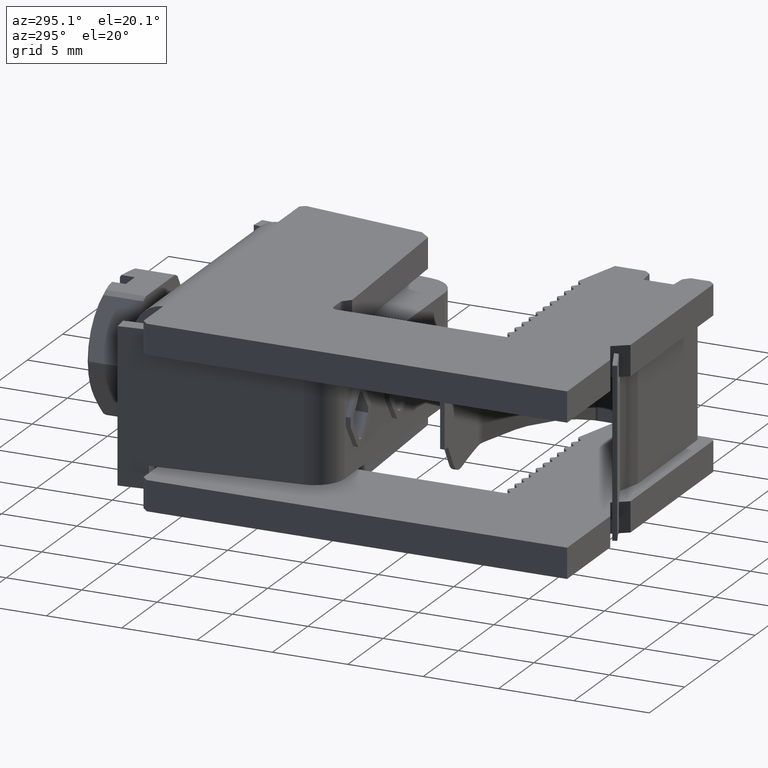
[diagram: clean part render]
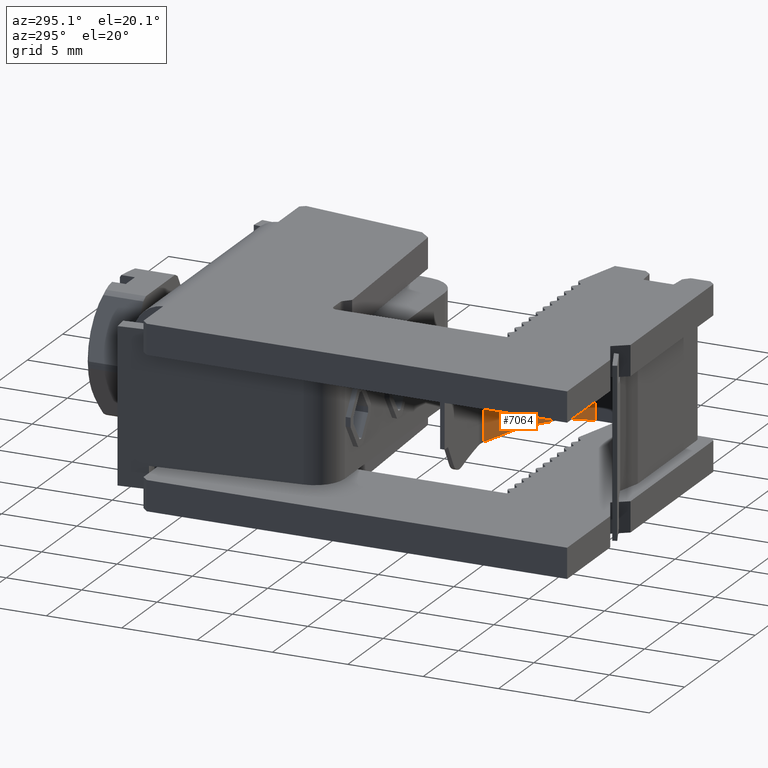
[diagram: same view with one face highlighted and labeled with its STEP entity id]
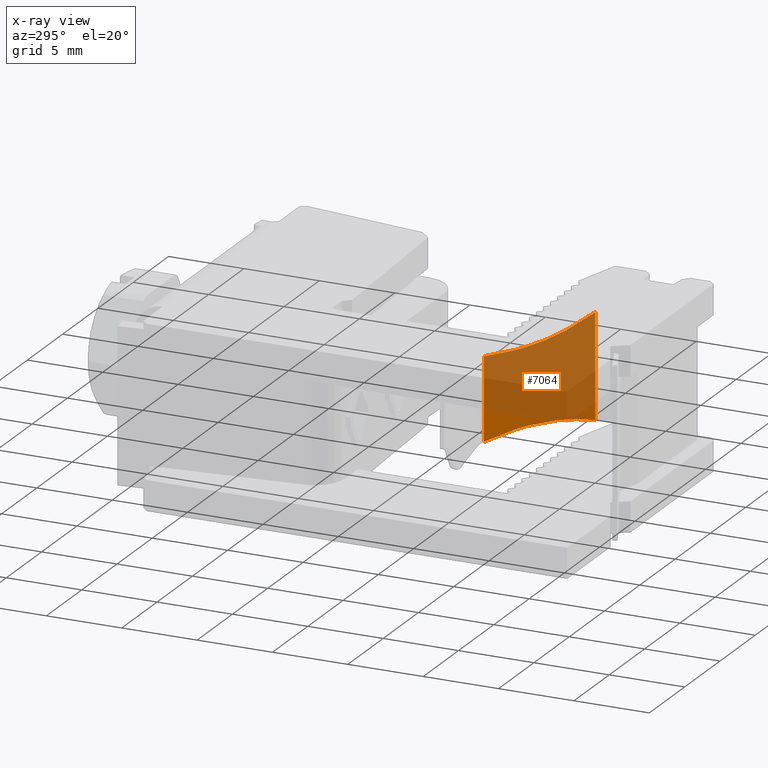
[diagram: x-ray of the same camera — body ghosted, the highlighted face saturated]
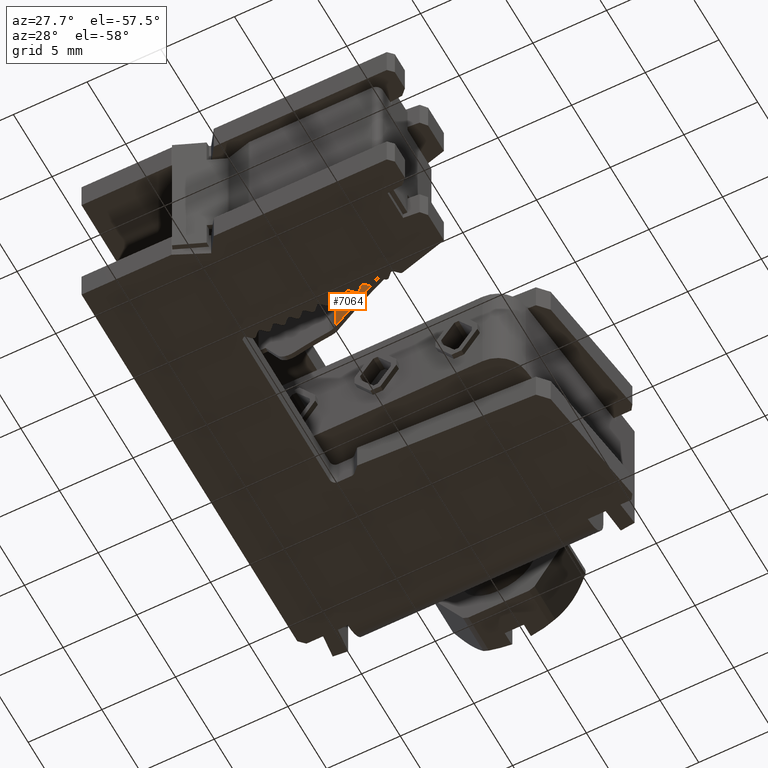
[diagram: same view with one face highlighted and labeled with its STEP entity id]
A machine part, auxiliary view. The second image highlights one B-rep face of the part: STEP entity #7064.
The next image is the same camera in x-ray: the body ghosted, the highlighted face saturated — about 87% of this face is hidden behind the body in this view.
A second angle (auxiliary view) of the same face is appended — the face is thin or edge-on in the first view.
In plain terms, the highlighted planar face has unit normal (0.4115, 0.9114, -0).
Its self-contained STEP definition (entity closure, byte-faithful):
#1116 = CARTESIAN_POINT ( 'NONE',  ( 12.11256735588221100, 8.124311517754598800, 8.539659673591931000 ) ) ;
#1117 = CARTESIAN_POINT ( 'NONE',  ( 11.89299120213785200, 8.223444110333225900, 8.540320259757558900 ) ) ;
#1119 = CARTESIAN_POINT ( 'NONE',  ( 11.78320308852925000, 8.273010423208024400, 8.540635388722044800 ) ) ;
#1120 = CARTESIAN_POINT ( 'NONE',  ( 11.69535873946420400, 8.312669730094048900, 8.540887531671286200 ) ) ;
#1130 = CARTESIAN_POINT ( 'NONE',  ( 12.00277930403806100, 8.173877802744447900, 8.539999721488879200 ) ) ;
#1165 = CARTESIAN_POINT ( 'NONE',  ( 11.51967002677377700, 8.391988350439687500, 8.541385686075393800 ) ) ;
#1168 = CARTESIAN_POINT ( 'NONE',  ( 11.43182567217010300, 8.431647659826250400, 8.541635488527552100 ) ) ;
#1169 = CARTESIAN_POINT ( 'NONE',  ( 11.60751438139347200, 8.352329041045893000, 8.541135883623187700 ) ) ;
#1207 = CARTESIAN_POINT ( 'NONE',  ( 11.34398132041731900, 8.471306967925714900, 8.541886576513606500 ) ) ;
#1208 = CARTESIAN_POINT ( 'NONE',  ( 11.25613698599179500, 8.510966268202395200, 8.542144779767928900 ) ) ;
#1233 = LINE ( 'NONE', #1237, #8486 ) ;
#1234 = DIRECTION ( 'NONE',  ( 0.0000000000000000000, 0.0000000000000000000, 1.000000000000000000 ) ) ;
#1237 = CARTESIAN_POINT ( 'NONE',  ( 17.00677823012316700, 5.914709954394947300, 11.59999999999999300 ) ) ;
#1262 = CARTESIAN_POINT ( 'NONE',  ( 15.43311713295116400, 6.625174646223086100, 8.885863804035055900 ) ) ;
#1270 = CARTESIAN_POINT ( 'NONE',  ( 12.11256735588221100, 8.124311517754598800, 8.539659673591931000 ) ) ;
#1299 = CARTESIAN_POINT ( 'NONE',  ( 17.00677823012316400, 5.914709954394948200, 9.459291654214739600 ) ) ;
#1302 = CARTESIAN_POINT ( 'NONE',  ( 13.78704246343948700, 7.368332073767276400, 8.576563091933881100 ) ) ;
#1349 = CARTESIAN_POINT ( 'NONE',  ( 15.43326413276127300, 6.625108279852983500, 3.114655817632972800 ) ) ;
#1370 = CARTESIAN_POINT ( 'NONE',  ( 13.78719388634401500, 7.368263710491731900, 3.423914507451206300 ) ) ;
#1371 = CARTESIAN_POINT ( 'NONE',  ( 17.00677823012316700, 5.914709954394947300, 2.540860053644022900 ) ) ;
#1380 = CARTESIAN_POINT ( 'NONE',  ( 12.11272044118686800, 8.124242403951127400, 3.460340800589919200 ) ) ;
#1696 = VERTEX_POINT ( 'NONE', #5385 ) ;
#1720 = VERTEX_POINT ( 'NONE', #5376 ) ;
#1727 = VERTEX_POINT ( 'NONE', #5379 ) ;
#1775 = VERTEX_POINT ( 'NONE', #4330 ) ;
#1788 = VERTEX_POINT ( 'NONE', #4341 ) ;
#1791 = VERTEX_POINT ( 'NONE', #4343 ) ;
#1801 = VERTEX_POINT ( 'NONE', #4374 ) ;
#1802 = VERTEX_POINT ( 'NONE', #4379 ) ;
#2027 = ORIENTED_EDGE ( 'NONE', *, *, #7512, .F. ) ;
#2042 = ORIENTED_EDGE ( 'NONE', *, *, #7178, .T. ) ;
#2055 = ORIENTED_EDGE ( 'NONE', *, *, #7629, .F. ) ;
#4330 = CARTESIAN_POINT ( 'NONE',  ( 17.00677823012316700, 5.914709954394947300, 2.540860053644022900 ) ) ;
#4341 = CARTESIAN_POINT ( 'NONE',  ( 12.11256735588221100, 8.124311517754598800, 8.539659673591931000 ) ) ;
#4343 = CARTESIAN_POINT ( 'NONE',  ( 12.11272044118686800, 8.124242403951127400, 3.460340800589919200 ) ) ;
#4374 = CARTESIAN_POINT ( 'NONE',  ( 8.980238782643445100, 9.538471693976646300, 8.738091799417611900 ) ) ;
#4379 = CARTESIAN_POINT ( 'NONE',  ( 11.25613698599178900, 8.510966268202397000, 3.457855220246168800 ) ) ;
#5376 = CARTESIAN_POINT ( 'NONE',  ( 17.00677823012316400, 5.914709954394948200, 9.459291654214739600 ) ) ;
#5379 = CARTESIAN_POINT ( 'NONE',  ( 11.25613698599179500, 8.510966268202395200, 8.542144779767928900 ) ) ;
#5385 = CARTESIAN_POINT ( 'NONE',  ( 8.980238782643441600, 9.538471693976649800, 3.261908200675662800 ) ) ;
#5768 = EDGE_LOOP ( 'NONE', ( #8887, #8884, #8899, #2042, #8902, #8917, #2055, #2027 ) ) ;
#7064 = ADVANCED_FACE ( 'NONE', ( #10394 ), #10324, .F. ) ;
#7178 = EDGE_CURVE ( 'NONE', #1788, #1727, #10854, .T. ) ;
#7192 = EDGE_CURVE ( 'NONE', #1775, #1720, #1233, .T. ) ;
#7213 = EDGE_CURVE ( 'NONE', #1720, #1788, #10836, .T. ) ;
#7239 = EDGE_CURVE ( 'NONE', #1791, #1775, #10835, .T. ) ;
#7512 = EDGE_CURVE ( 'NONE', #1791, #1802, #10866, .T. ) ;
#7531 = EDGE_CURVE ( 'NONE', #1696, #1801, #9218, .T. ) ;
#7559 = EDGE_CURVE ( 'NONE', #1801, #1727, #10840, .T. ) ;
#7629 = EDGE_CURVE ( 'NONE', #1802, #1696, #10827, .T. ) ;
#7720 = VECTOR ( 'NONE', #9214, 1000.000000000000000 ) ;
#8362 = AXIS2_PLACEMENT_3D ( 'NONE', #10352, #10362, #10348 ) ;
#8486 = VECTOR ( 'NONE', #1234, 1000.000000000000000 ) ;
#8884 = ORIENTED_EDGE ( 'NONE', *, *, #7192, .T. ) ;
#8887 = ORIENTED_EDGE ( 'NONE', *, *, #7239, .T. ) ;
#8899 = ORIENTED_EDGE ( 'NONE', *, *, #7213, .T. ) ;
#8902 = ORIENTED_EDGE ( 'NONE', *, *, #7559, .F. ) ;
#8917 = ORIENTED_EDGE ( 'NONE', *, *, #7531, .F. ) ;
#9126 = CARTESIAN_POINT ( 'NONE',  ( 12.11272044118686800, 8.124242403951127400, 3.460340800589919200 ) ) ;
#9128 = CARTESIAN_POINT ( 'NONE',  ( 12.00292176484875600, 8.173813485607706000, 3.460000700770046800 ) ) ;
#9129 = CARTESIAN_POINT ( 'NONE',  ( 11.89312303841950100, 8.223384589879055200, 3.459680123164353500 ) ) ;
#9131 = CARTESIAN_POINT ( 'NONE',  ( 11.78332430027274200, 8.272955699440538900, 3.459364959215355500 ) ) ;
#9132 = CARTESIAN_POINT ( 'NONE',  ( 11.69545974925897300, 8.312624126950627400, 3.459112754687855100 ) ) ;
#9133 = CARTESIAN_POINT ( 'NONE',  ( 11.60759518922901600, 8.352292558531278400, 3.458864345534073100 ) ) ;
#9134 = CARTESIAN_POINT ( 'NONE',  ( 11.51973063264922100, 8.391960988554274100, 3.458614486284481900 ) ) ;
#9135 = CARTESIAN_POINT ( 'NONE',  ( 11.43186607608553700, 8.431629418569995600, 3.458364627034936900 ) ) ;
#9166 = CARTESIAN_POINT ( 'NONE',  ( 11.34400152237114800, 8.471297847299343400, 3.458113482881178100 ) ) ;
#9205 = CARTESIAN_POINT ( 'NONE',  ( 11.25613698599178900, 8.510966268202397000, 3.457855220246168800 ) ) ;
#9214 = DIRECTION ( 'NONE',  ( 0.0000000000000000000, 0.0000000000000000000, 1.000000000000000000 ) ) ;
#9218 = LINE ( 'NONE', #9229, #7720 ) ;
#9229 = CARTESIAN_POINT ( 'NONE',  ( 8.980238782643443300, 9.538471693976648100, 11.59999999999999300 ) ) ;
#9320 = CARTESIAN_POINT ( 'NONE',  ( 10.49398564224213500, 8.855056632091159200, 8.561071975859073600 ) ) ;
#9333 = CARTESIAN_POINT ( 'NONE',  ( 8.980238782643445100, 9.538471693976646300, 8.738091799417611900 ) ) ;
#9337 = CARTESIAN_POINT ( 'NONE',  ( 11.25613698599179500, 8.510966268202395200, 8.542144779767928900 ) ) ;
#9349 = CARTESIAN_POINT ( 'NONE',  ( 9.734409343519457600, 9.197984433993209300, 8.626468886719269600 ) ) ;
#9537 = CARTESIAN_POINT ( 'NONE',  ( 10.49398564224374800, 8.855056632090430900, 3.438928024181271000 ) ) ;
#9539 = CARTESIAN_POINT ( 'NONE',  ( 9.734409343521077700, 9.197984433992479200, 3.373531113347510800 ) ) ;
#9540 = CARTESIAN_POINT ( 'NONE',  ( 8.980238782643441600, 9.538471693976649800, 3.261908200675662800 ) ) ;
#9542 = CARTESIAN_POINT ( 'NONE',  ( 11.25613698599178900, 8.510966268202397000, 3.457855220246168800 ) ) ;
#10324 = PLANE ( 'NONE',  #8362 ) ;
#10348 = DIRECTION ( 'NONE',  ( -0.9114185984578721000, 0.4114804228454714300, 0.0000000000000000000 ) ) ;
#10352 = CARTESIAN_POINT ( 'NONE',  ( 17.00677823012316700, 5.914709954394948200, 11.59999999999999300 ) ) ;
#10362 = DIRECTION ( 'NONE',  ( 0.4114804228454714800, 0.9114185984578722100, -0.0000000000000000000 ) ) ;
#10394 = FACE_OUTER_BOUND ( 'NONE', #5768, .T. ) ;
#10827 =( BOUNDED_CURVE ( )  B_SPLINE_CURVE ( 3, ( #9542, #9537, #9539, #9540 ),
 .UNSPECIFIED., .F., .T. ) 
 B_SPLINE_CURVE_WITH_KNOTS ( ( 4, 4 ),
 ( 4.737217784681565300, 4.859329722815591200 ),
 .UNSPECIFIED. ) 
 CURVE ( )  GEOMETRIC_REPRESENTATION_ITEM ( )  RATIONAL_B_SPLINE_CURVE ( ( 1.000000000000000000, 0.9987577755193163300, 0.9987577755193163300, 1.000000000000000000 ) ) 
 REPRESENTATION_ITEM ( '' )  );
#10835 =( BOUNDED_CURVE ( )  B_SPLINE_CURVE ( 3, ( #1380, #1370, #1349, #1371 ),
 .UNSPECIFIED., .F., .F. ) 
 B_SPLINE_CURVE_WITH_KNOTS ( ( 4, 4 ),
 ( 1.592546775483581100, 1.920470062257581000 ),
 .UNSPECIFIED. ) 
 CURVE ( )  GEOMETRIC_REPRESENTATION_ITEM ( )  RATIONAL_B_SPLINE_CURVE ( ( 1.000000000000000000, 0.9910589173595756300, 0.9910589173595756300, 1.000000000000000000 ) ) 
 REPRESENTATION_ITEM ( '' )  );
#10836 =( BOUNDED_CURVE ( )  B_SPLINE_CURVE ( 3, ( #1299, #1262, #1302, #1270 ),
 .UNSPECIFIED., .F., .F. ) 
 B_SPLINE_CURVE_WITH_KNOTS ( ( 4, 4 ),
 ( 4.362951685616860000, 4.690353749674671700 ),
 .UNSPECIFIED. ) 
 CURVE ( )  GEOMETRIC_REPRESENTATION_ITEM ( )  RATIONAL_B_SPLINE_CURVE ( ( 1.000000000000000000, 0.9910872544019856400, 0.9910872544019856400, 1.000000000000000000 ) ) 
 REPRESENTATION_ITEM ( '' )  );
#10840 =( BOUNDED_CURVE ( )  B_SPLINE_CURVE ( 3, ( #9333, #9349, #9320, #9337 ),
 .UNSPECIFIED., .F., .T. ) 
 B_SPLINE_CURVE_WITH_KNOTS ( ( 4, 4 ),
 ( 1.423855584329301500, 1.545967522463629100 ),
 .UNSPECIFIED. ) 
 CURVE ( )  GEOMETRIC_REPRESENTATION_ITEM ( )  RATIONAL_B_SPLINE_CURVE ( ( 1.000000000000000000, 0.9987577755193101100, 0.9987577755193101100, 1.000000000000000000 ) ) 
 REPRESENTATION_ITEM ( '' )  );
#10854 = B_SPLINE_CURVE_WITH_KNOTS ( 'NONE', 3,
 ( #1116, #1130, #1117, #1119, #1120, #1169, #1165, #1168, #1207, #1208 ),
 .UNSPECIFIED., .F., .F.,
 ( 4, 3, 3, 4 ),
 ( 3.878959614448864200E-018, 0.0003613767246406669700, 0.0006505237187481760700, 0.0009396707129638302100 ),
 .UNSPECIFIED. ) ;
#10866 = B_SPLINE_CURVE_WITH_KNOTS ( 'NONE', 3,
 ( #9126, #9128, #9129, #9131, #9132, #9133, #9134, #9135, #9166, #9205 ),
 .UNSPECIFIED., .F., .F.,
 ( 4, 3, 3, 4 ),
 ( 0.0000000000000000000, 0.0003614116962285908000, 0.0006506251867606592900, 0.0009398386774005858400 ),
 .UNSPECIFIED. ) ;